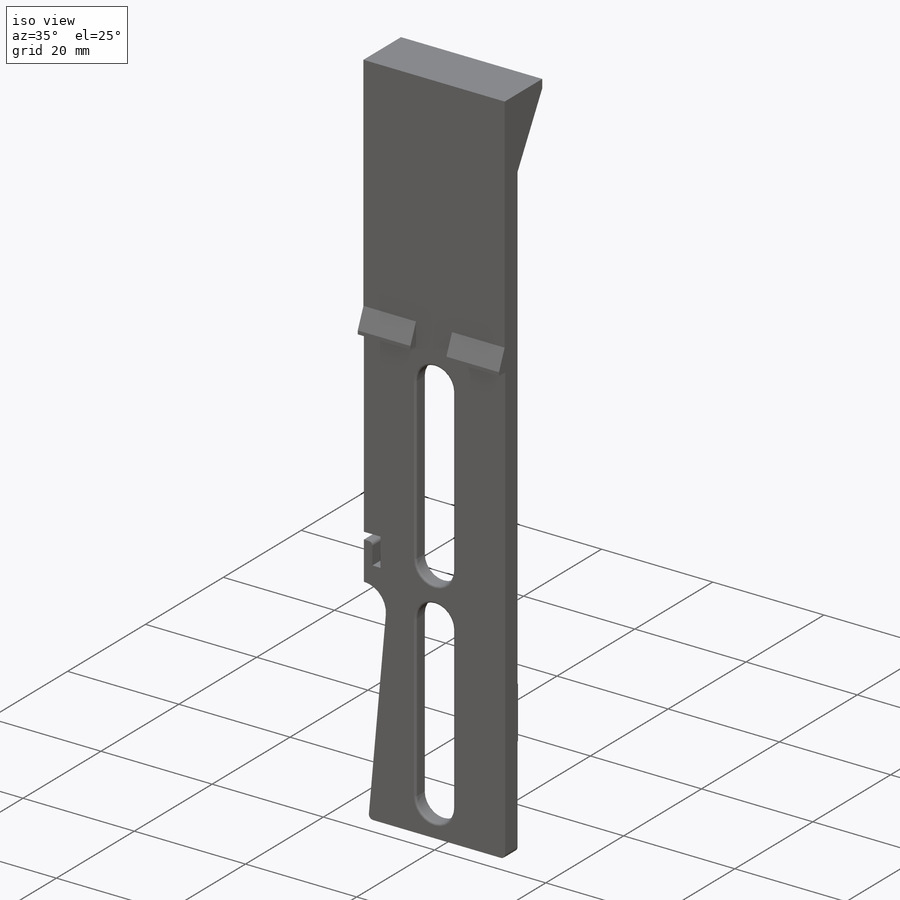
[diagram: iso view]
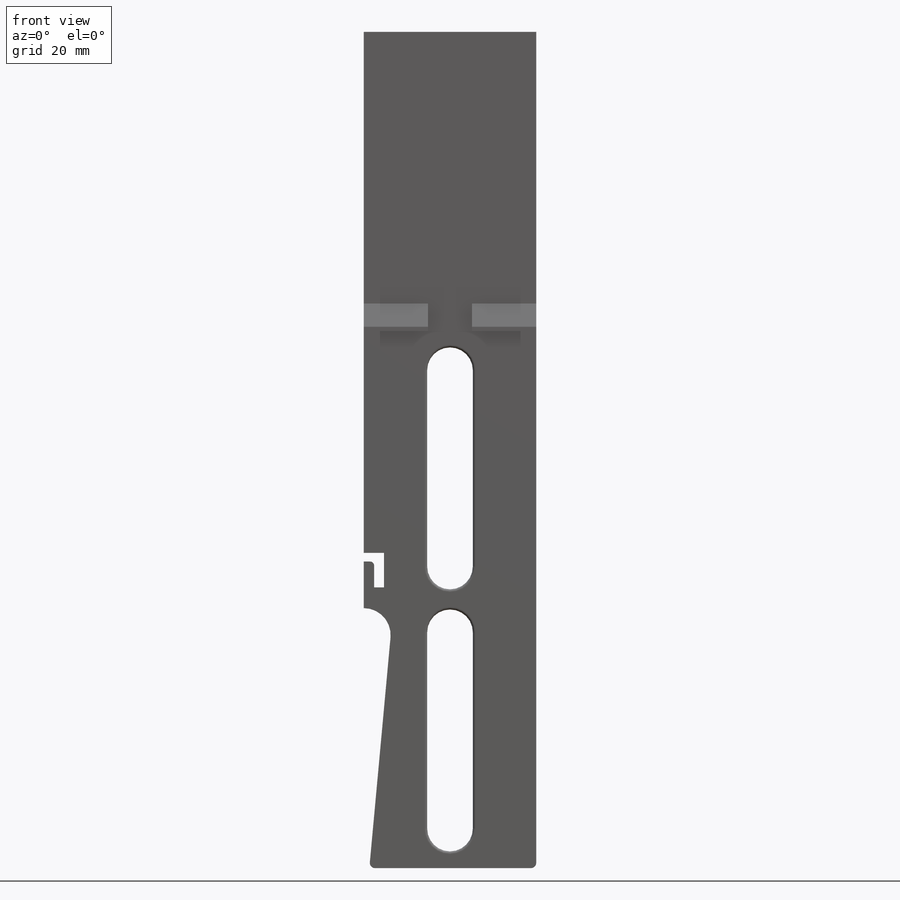
[diagram: front view]
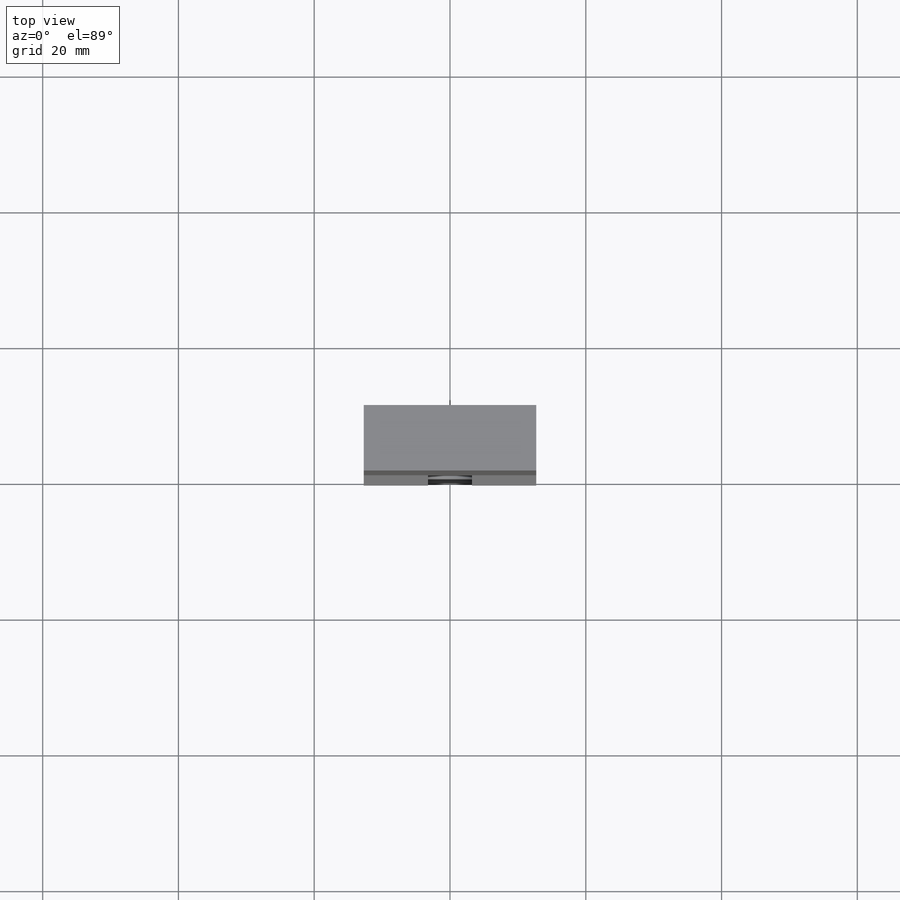
[diagram: top view]
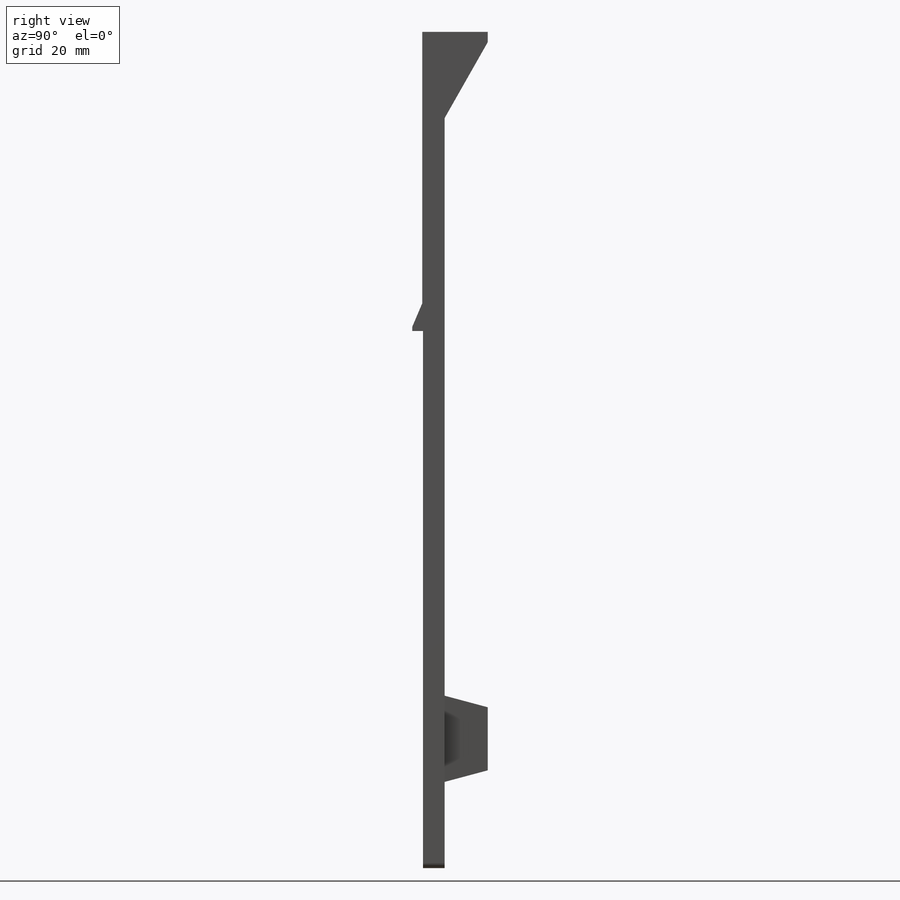
[diagram: right view]
SOLIDWORKS PART (.sldprt)
format: sldprt  version: not decoded by parser v0  size: 663,552 bytes
history: native  units: mm
features: sketch x22, extrude x12, cut_extrude x9, fillet x4, material x1, pattern_linear x1 (+12 scaffold rows collapsed)
feature tree (61):
  scaffold x12  (default folders/planes/origin — collapsed)
  material  "Material <not specified>"
  sketch  "Sketch1"  dims[D1=25.4mm D2=123.19mm]
  extrude  "Boss-Extrude1"  Depth=2.032mm
  sketch  "Sketch2"  dims[c1.D1=0.0mm c2.D1=3.175mm c2.D5=1.524mm c2.D6=2.54mm c2.D7=5.0mm]
  sketch  "Sketch3"  dims[c1.D3=3.3655mm c1.D1=6.731mm c1.D2=35.6362mm c2.D3=2.4638mm]
  cut_extrude  "Cut-Extrude1"  [1 undecoded]
  pattern_linear  "LPattern1"  Count1=2 Count2=1 Spacing1=38.608mm Spacing2=2.54mm
  sketch  "Sketch4"  dims[D1=24.5872mm D2=38.3032mm D3=21.463mm]
  cut_extrude  "Cut-Extrude2"  [1 undecoded]
  sketch  "Sketch5"  dims[D1=1.27mm D2=1.4478mm D3=5.08mm D4=1.524mm D5=45.1612mm]
  cut_extrude  "Cut-Extrude3"  [1 undecoded]
  sketch  "Sketch6"  dims[c1.D3=7.1374mm c1.D1=14.2748mm c1.D2=~80.81264mm c2.D3=79.756mm c2.D4=1.651mm]
  extrude  "Boss-Extrude2"  [1 undecoded]
  sketch  "Sketch7"
  cut_extrude  "Cut-Extrude4"  [1 undecoded]
  sketch  "Sketch8"
  cut_extrude  "Cut-Extrude5"  [1 undecoded]
  fillet  "Fillet1"  Radius=0.254mm
  sketch  "Sketch9"  dims[D1=0.0mm]
  extrude  "Boss-Extrude3"  Depth=0.508mm
  sketch  "Sketch10"  dims[D1=1.651mm]
  extrude  "Boss-Extrude4"  [1 undecoded]
  sketch  "Sketch11"  dims[D1=1.651mm D2=1.651mm]
  extrude  "Boss-Extrude5"  [1 undecoded]
  sketch  "Sketch12"  dims[D1=~7.905521mm]
  extrude  "Extrude-Thin4"  Depth=1.651mm
  sketch  "Sketch13"
  extrude  "Boss-Extrude6"  [1 undecoded]
  sketch  "Sketch14"  dims[D1=0.0mm]
  extrude  "Boss-Extrude7"  [1 undecoded]
  fillet  "Fillet2"  Radius=0.381mm
  sketch  "Sketch15"  dims[D1=44.069mm]
  extrude  "Boss-Extrude8"  Depth=0.127mm
  sketch  "Sketch16"  dims[D1=1.5875mm D2=0.635mm D3=4.064mm]
  extrude  "Boss-Extrude9"  [1 undecoded]
  sketch  "Sketch17"  dims[D1=6.477mm]
  cut_extrude  "Cut-Extrude6"  [1 undecoded]
  fillet  "Fillet3"  Radius=0.5842mm
  sketch  "Sketch18"  dims[D1=12.7mm D2=12.7mm]
  extrude  "Boss-Extrude11"  Depth=6.35mm
  sketch  "Sketch19"  dims[c1.D1=~9.737641mm c2.D1=15.0deg c2.D2=~9.737641mm c3.D2=15.0deg]
  cut_extrude  "Cut-Extrude7"  [1 undecoded]
  fillet  "Fillet4"  Radius=0.762mm
  sketch  "Sketch20"
  cut_extrude  "Cut-Extrude8"  [1 undecoded]
  sketch  "Sketch22"  dims[D1=12.7mm]
  extrude  "Boss-Extrude12"  Depth=6.35mm
  sketch  "Sketch23"
  cut_extrude  "Cut-Extrude9"  [1 undecoded]
decode coverage: 28 of 48 modeling features carry decoded parameters
note: ~ marks probable driven/reference dimensions
note: 15 parameter values undecoded
summary: no parameter record found for 15 features
note: suppression state not decoded; provenance and decode notes live in map.json
